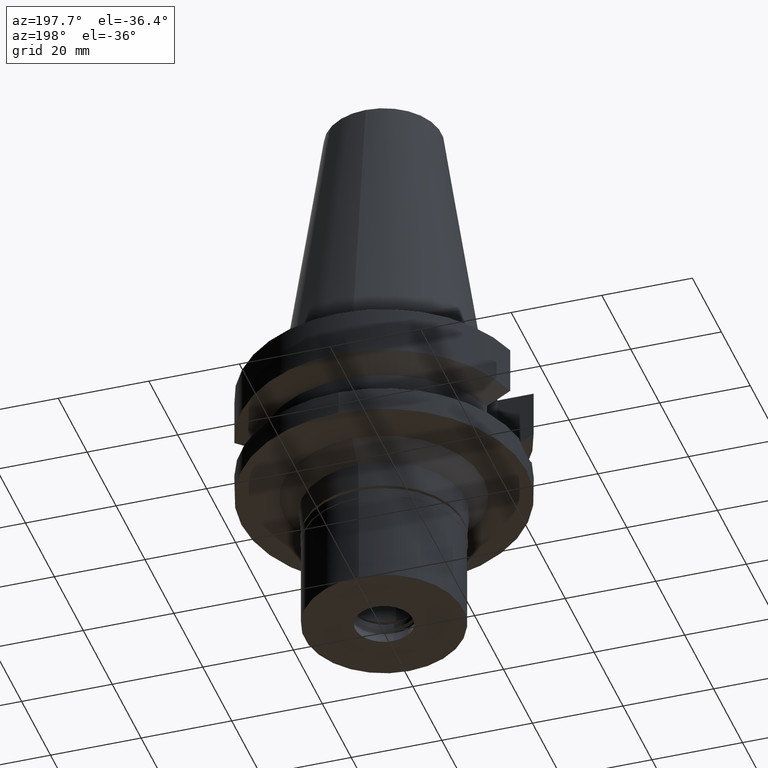
[diagram: clean part render]
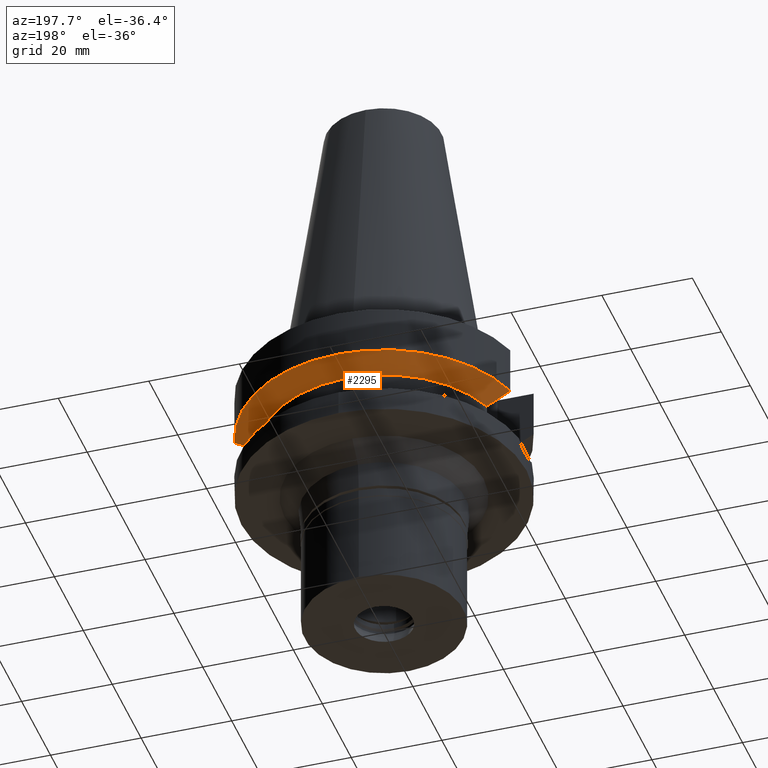
[diagram: same view with one face highlighted and labeled with its STEP entity id]
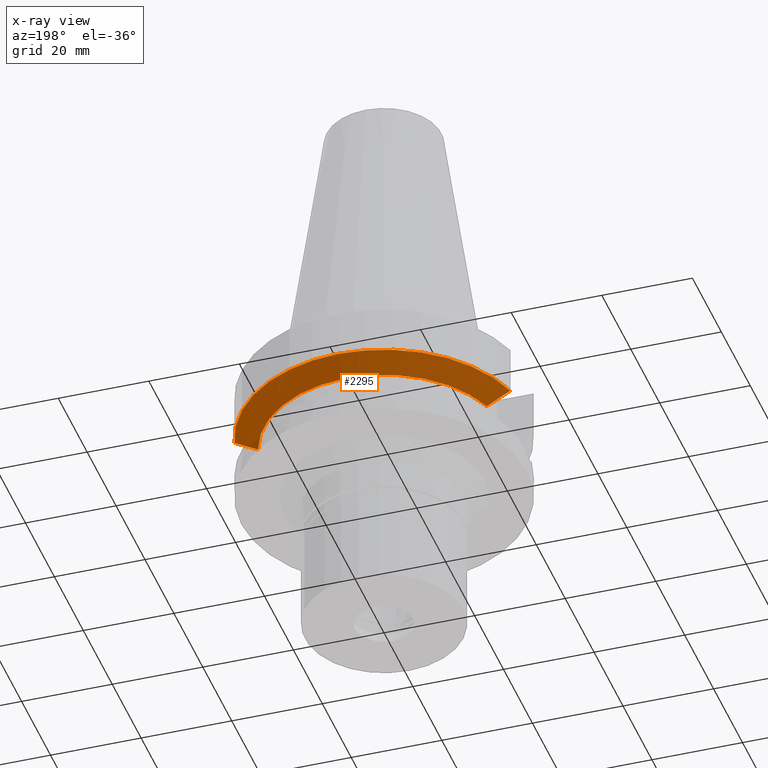
[diagram: x-ray of the same camera — body ghosted, the highlighted face saturated]
A machine part, auxiliary view. The second image highlights one B-rep face of the part: STEP entity #2295.
The next image is the same camera in x-ray: the body ghosted, the highlighted face saturated — about 1% of this face is hidden behind the body in this view.
In plain terms, the highlighted conical surface has half-angle 60 deg.
Its self-contained STEP definition (entity closure, byte-faithful):
#116 = EDGE_CURVE ( 'NONE', #2320, #2419, #1307, .T. ) ;
#121 = ORIENTED_EDGE ( 'NONE', *, *, #2680, .T. ) ;
#160 = AXIS2_PLACEMENT_3D ( 'NONE', #1351, #331, #2294 ) ;
#250 = AXIS2_PLACEMENT_3D ( 'NONE', #1617, #2564, #2864 ) ;
#319 = CARTESIAN_POINT ( 'NONE',  ( -30.45402161906999794, 8.050004175477999624, -11.56546804176000087 ) ) ;
#331 = DIRECTION ( 'NONE',  ( 0.0000000000000000000, 0.0000000000000000000, 1.000000000000000000 ) ) ;
#340 = ORIENTED_EDGE ( 'NONE', *, *, #116, .F. ) ;
#457 = B_SPLINE_CURVE_WITH_KNOTS ( 'NONE', 3,
 ( #1385, #1623, #1200, #898 ),
 .UNSPECIFIED., .F., .F.,
 ( 4, 4 ),
 ( 0.0000000000000000000, 1.000000000000000000 ),
 .UNSPECIFIED. ) ;
#488 = CARTESIAN_POINT ( 'NONE',  ( 25.24772414797999787, 8.049995363206999599, -14.45229242979000084 ) ) ;
#685 = VERTEX_POINT ( 'NONE', #2757 ) ;
#864 = VERTEX_POINT ( 'NONE', #319 ) ;
#898 = CARTESIAN_POINT ( 'NONE',  ( 25.24772414797999787, 8.049995363206999599, -14.45229242979000084 ) ) ;
#947 = CARTESIAN_POINT ( 'NONE',  ( 0.0000000000000000000, 1.065333950388000029E-14, -13.00888132564000088 ) ) ;
#1105 = CARTESIAN_POINT ( 'NONE',  ( -30.45402161906999794, 8.050004175477999624, -11.56546804176000087 ) ) ;
#1154 = DIRECTION ( 'NONE',  ( 0.0000000000000000000, 0.0000000000000000000, 1.000000000000000000 ) ) ;
#1200 = CARTESIAN_POINT ( 'NONE',  ( 26.83754558376481825, 8.049990716140035474, -13.57774921595145301 ) ) ;
#1307 = CIRCLE ( 'NONE', #250, 26.50000000000000711 ) ;
#1351 = CARTESIAN_POINT ( 'NONE',  ( 0.0000000000000000000, 1.065333950388000029E-14, -11.56550565266999975 ) ) ;
#1361 = CONICAL_SURFACE ( 'NONE', #2777, 29.00000000000000000, 1.047197551196400456 ) ;
#1385 = CARTESIAN_POINT ( 'NONE',  ( 30.45402291886999890, 8.049999258190000617, -11.56551233397999923 ) ) ;
#1617 = CARTESIAN_POINT ( 'NONE',  ( 0.0000000000000000000, 1.065333950388000029E-14, -14.45225699861000024 ) ) ;
#1623 = CARTESIAN_POINT ( 'NONE',  ( 28.57292273478724098, 8.049998517346203641, -12.61549637148051062 ) ) ;
#1709 = ORIENTED_EDGE ( 'NONE', *, *, #2756, .F. ) ;
#1897 = DIRECTION ( 'NONE',  ( 0.0000000000000000000, 1.000000000000000000, 0.0000000000000000000 ) ) ;
#2038 = CARTESIAN_POINT ( 'NONE',  ( -28.57295780117759776, 8.050008345878877591, -12.61547530319244359 ) ) ;
#2294 = DIRECTION ( 'NONE',  ( 0.0000000000000000000, 1.000000000000000000, 0.0000000000000000000 ) ) ;
#2295 = ADVANCED_FACE ( 'NONE', ( #2374 ), #1361, .T. ) ;
#2304 = ORIENTED_EDGE ( 'NONE', *, *, #2385, .T. ) ;
#2320 = VERTEX_POINT ( 'NONE', #2823 ) ;
#2374 = FACE_OUTER_BOUND ( 'NONE', #2974, .T. ) ;
#2385 = EDGE_CURVE ( 'NONE', #685, #2419, #457, .T. ) ;
#2419 = VERTEX_POINT ( 'NONE', #488 ) ;
#2449 = CIRCLE ( 'NONE', #160, 31.50000000000000000 ) ;
#2509 = CARTESIAN_POINT ( 'NONE',  ( -26.83758051170044467, 8.050003103911411273, -13.57772789895687104 ) ) ;
#2522 = CARTESIAN_POINT ( 'NONE',  ( -25.24772217529000073, 8.050001550280999396, -14.45224515308999891 ) ) ;
#2564 = DIRECTION ( 'NONE',  ( 0.0000000000000000000, 0.0000000000000000000, -1.000000000000000000 ) ) ;
#2680 = EDGE_CURVE ( 'NONE', #2320, #864, #3015, .T. ) ;
#2756 = EDGE_CURVE ( 'NONE', #685, #864, #2449, .T. ) ;
#2757 = CARTESIAN_POINT ( 'NONE',  ( 30.45402291886999890, 8.049999258190000617, -11.56551233397999923 ) ) ;
#2777 = AXIS2_PLACEMENT_3D ( 'NONE', #947, #1154, #1897 ) ;
#2823 = CARTESIAN_POINT ( 'NONE',  ( -25.24772217529000073, 8.050001550280999396, -14.45224515308999891 ) ) ;
#2864 = DIRECTION ( 'NONE',  ( -0.9527442516822307583, 0.3037735849057093818, 0.0000000000000000000 ) ) ;
#2974 = EDGE_LOOP ( 'NONE', ( #1709, #2304, #340, #121 ) ) ;
#3015 = B_SPLINE_CURVE_WITH_KNOTS ( 'NONE', 3,
 ( #2522, #2509, #2038, #1105 ),
 .UNSPECIFIED., .F., .F.,
 ( 4, 4 ),
 ( 0.0000000000000000000, 1.000000000000000000 ),
 .UNSPECIFIED. ) ;